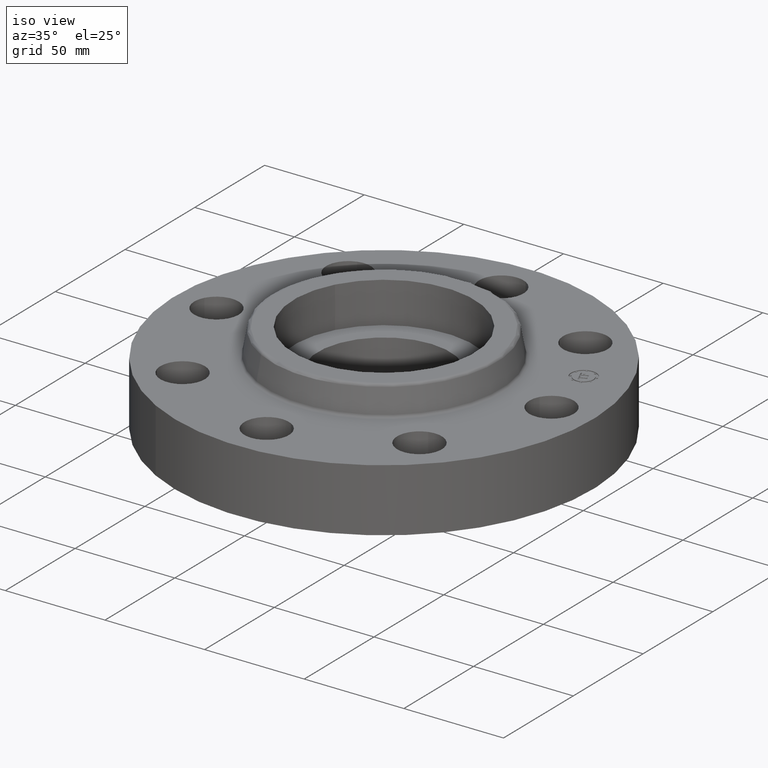
[diagram: clean part render]
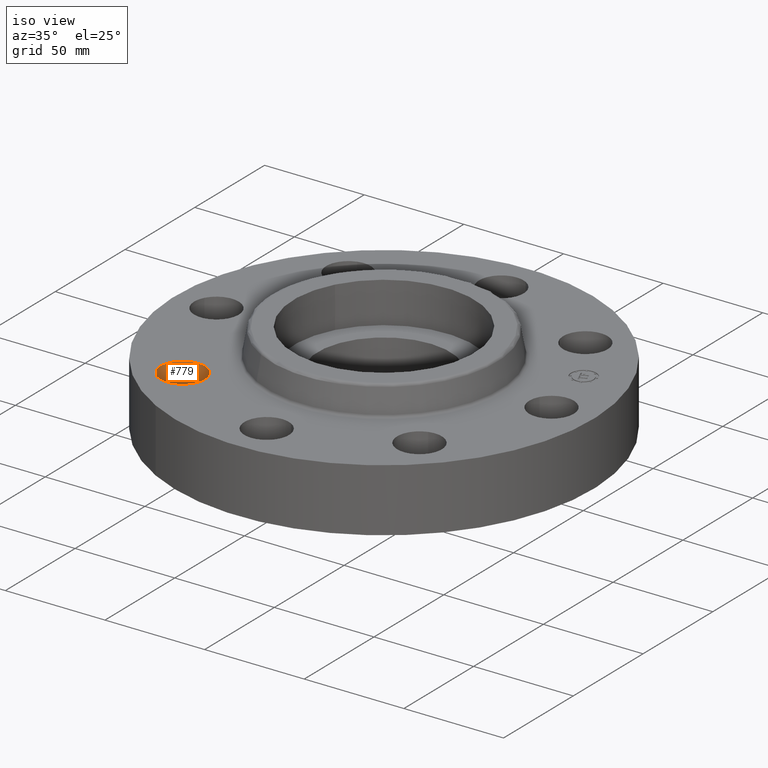
[diagram: same view with one face highlighted and labeled with its STEP entity id]
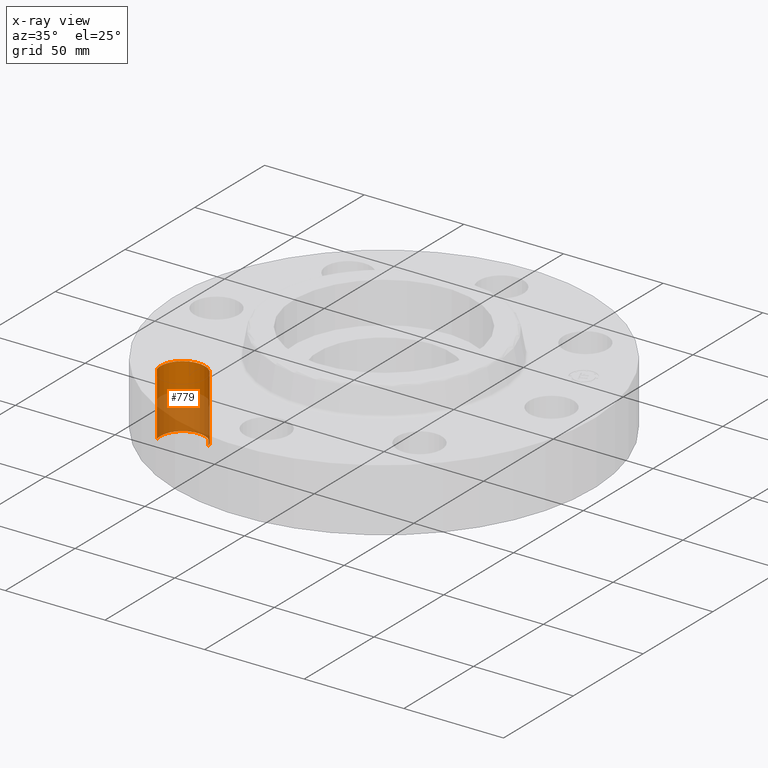
[diagram: x-ray of the same camera — body ghosted, the highlighted face saturated]
A machine part, iso view. The second image highlights one B-rep face of the part: STEP entity #779.
The next image is the same camera in x-ray: the body ghosted, the highlighted face saturated — about 57% of this face is hidden behind the body in this view.
In plain terms, the highlighted cylindrical surface (edge-blend (fillet) strip) has radius 11.176 mm, axis along (-0, 0, -1).
Its self-contained STEP definition (entity closure, byte-faithful):
#283=AXIS2_PLACEMENT_3D('Circle Axis2P3D',#281,#282,$) ;
#752=AXIS2_PLACEMENT_3D('Cylinder Axis2P3D',#749,#750,#751) ;
#770=AXIS2_PLACEMENT_3D('Circle Axis2P3D',#768,#769,$) ;
#276=CARTESIAN_POINT('Vertex',(-1.91832160854,-2.21664605203,0.)) ;
#278=CARTESIAN_POINT('Vertex',(-2.76272528293,-2.46440083944,0.)) ;
#281=CARTESIAN_POINT('Axis2P3D Location',(-2.34052344574,-2.34052344574,0.)) ;
#749=CARTESIAN_POINT('Axis2P3D Location',(-2.34052344574,-2.34052344574,1.24606299213)) ;
#754=CARTESIAN_POINT('Line Origine',(-2.76272528293,-2.46440083944,0.625000000003)) ;
#758=CARTESIAN_POINT('Vertex',(-2.76272528293,-2.46440083944,1.25000000001)) ;
#761=CARTESIAN_POINT('Line Origine',(-1.91832160854,-2.21664605203,0.625000000003)) ;
#765=CARTESIAN_POINT('Vertex',(-1.91832160854,-2.21664605203,1.25000000001)) ;
#768=CARTESIAN_POINT('Axis2P3D Location',(-2.34052344574,-2.34052344574,1.25000000001)) ;
#282=DIRECTION('Axis2P3D Direction',(0.,0.,-0.0393700787402)) ;
#750=DIRECTION('Axis2P3D Direction',(-0.,0.,-0.0393700787402)) ;
#751=DIRECTION('Axis2P3D XDirection',(0.0377775444876,0.0110842335096,-0.)) ;
#755=DIRECTION('Vector Direction',(0.,0.,-0.0393700787402)) ;
#762=DIRECTION('Vector Direction',(0.,0.,-0.0393700787402)) ;
#769=DIRECTION('Axis2P3D Direction',(-0.,0.,-0.0393700787402)) ;
#756=VECTOR('Line Direction',#755,0.0393700787402) ;
#763=VECTOR('Line Direction',#762,0.0393700787402) ;
#774=ORIENTED_EDGE('',*,*,#760,.F.) ;
#775=ORIENTED_EDGE('',*,*,#285,.T.) ;
#776=ORIENTED_EDGE('',*,*,#767,.T.) ;
#777=ORIENTED_EDGE('',*,*,#772,.F.) ;
#779=ADVANCED_FACE('PartBody',(#778),#753,.F.) ;
#284=CIRCLE('generated circle',#283,0.440000000002) ;
#771=CIRCLE('generated circle',#770,0.440000000002) ;
#753=CYLINDRICAL_SURFACE('generated cylinder',#752,0.440000000002) ;
#285=EDGE_CURVE('',#279,#277,#284,.T.) ;
#760=EDGE_CURVE('',#279,#759,#757,.F.) ;
#767=EDGE_CURVE('',#277,#766,#764,.F.) ;
#772=EDGE_CURVE('',#759,#766,#771,.T.) ;
#773=EDGE_LOOP('',(#774,#775,#776,#777)) ;
#778=FACE_OUTER_BOUND('',#773,.T.) ;
#757=LINE('Line',#754,#756) ;
#764=LINE('Line',#761,#763) ;
#277=VERTEX_POINT('',#276) ;
#279=VERTEX_POINT('',#278) ;
#759=VERTEX_POINT('',#758) ;
#766=VERTEX_POINT('',#765) ;